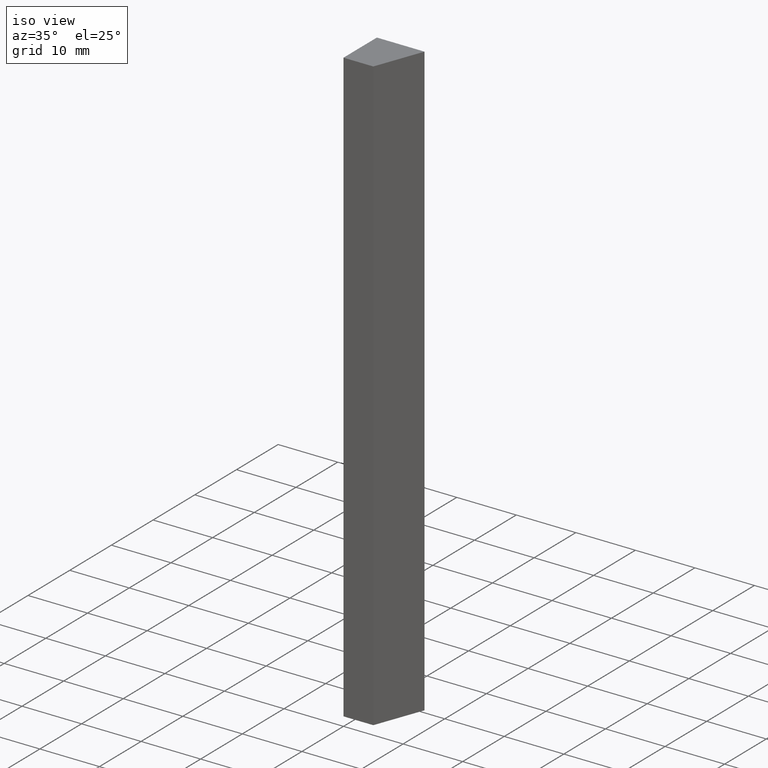
[diagram: clean part render]
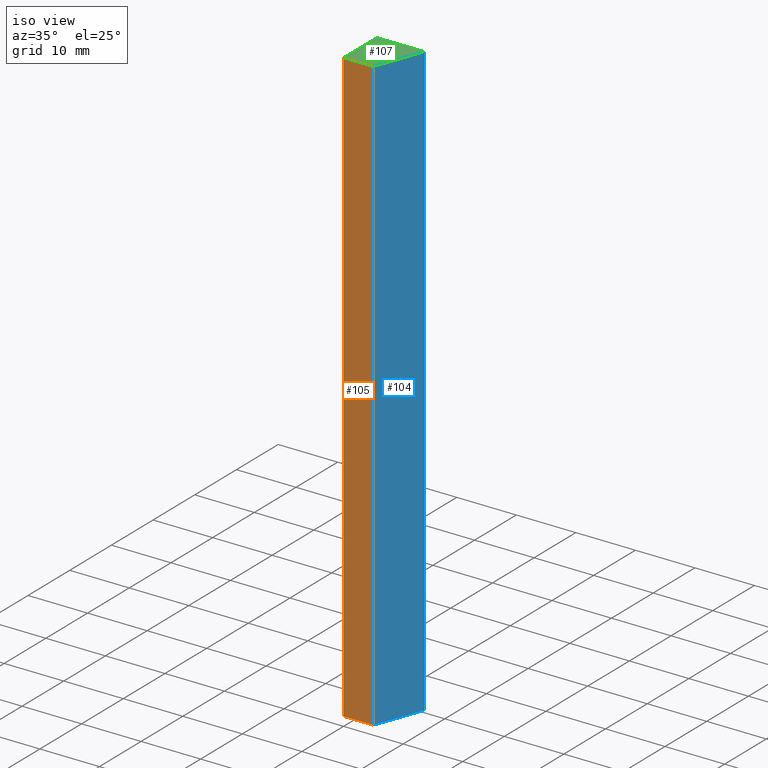
[diagram: same view with three faces highlighted in distinct colors, each labeled with its STEP entity id]
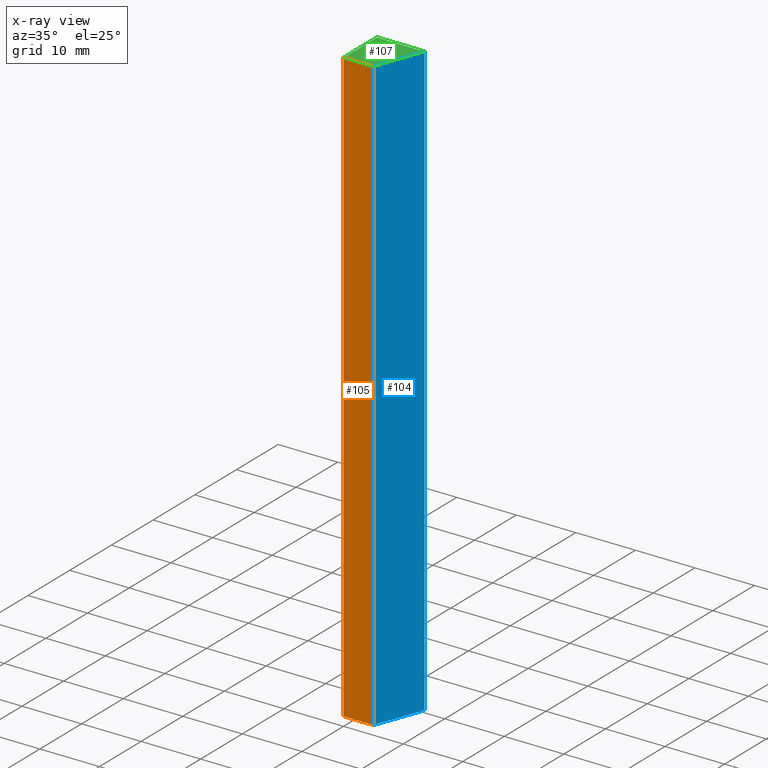
[diagram: x-ray of the same camera — body ghosted, the three highlighted faces saturated]
A machine part, iso view with three faces highlighted in distinct colors.
The next image is the same camera in x-ray (body ghosted, the three faces saturated) — at least one of them is partly hidden behind the body in this view.
Their STEP definitions:

[orange] entity #105 — the highlighted planar face has unit normal (0, -1, 0).
#19=FACE_OUTER_BOUND('',#25,.T.);
#25=EDGE_LOOP('',(#84,#85,#86,#87));
#28=LINE('',#167,#40);
#36=LINE('',#182,#48);
#37=LINE('',#185,#49);
#38=LINE('',#186,#50);
#40=VECTOR('',#141,10.);
#48=VECTOR('',#153,10.);
#49=VECTOR('',#156,10.);
#50=VECTOR('',#157,10.);
#52=VERTEX_POINT('',#165);
#53=VERTEX_POINT('',#166);
#58=VERTEX_POINT('',#180);
#59=VERTEX_POINT('',#184);
#60=EDGE_CURVE('',#52,#53,#28,.T.);
#68=EDGE_CURVE('',#58,#53,#36,.T.);
#69=EDGE_CURVE('',#58,#59,#37,.T.);
#70=EDGE_CURVE('',#52,#59,#38,.T.);
#84=ORIENTED_EDGE('',*,*,#69,.T.);
#85=ORIENTED_EDGE('',*,*,#70,.F.);
#86=ORIENTED_EDGE('',*,*,#60,.T.);
#87=ORIENTED_EDGE('',*,*,#68,.F.);
#99=PLANE('',#134);
#105=ADVANCED_FACE('',(#19),#99,.T.);
#134=AXIS2_PLACEMENT_3D('',#183,#154,#155);
#141=DIRECTION('',(1.,3.67394039744206E-16,0.));
#153=DIRECTION('',(0.,0.,-1.));
#154=DIRECTION('center_axis',(3.67394039744206E-16,-1.,0.));
#155=DIRECTION('ref_axis',(0.,0.,-1.));
#156=DIRECTION('',(-1.,-3.67394039744206E-16,0.));
#157=DIRECTION('',(0.,0.,1.));
#165=CARTESIAN_POINT('',(0.,9.55224489100982E-15,-50.));
#166=CARTESIAN_POINT('',(5.,1.13892150897308E-14,-50.));
#167=CARTESIAN_POINT('',(5.,1.13892150897308E-14,-50.));
#180=CARTESIAN_POINT('',(5.,1.13892150897308E-14,50.));
#182=CARTESIAN_POINT('',(5.,1.13892150897308E-14,0.));
#183=CARTESIAN_POINT('Origin',(5.,1.13892150897308E-14,0.));
#184=CARTESIAN_POINT('',(0.,9.55224489100982E-15,50.));
#185=CARTESIAN_POINT('',(5.,1.13892150897308E-14,50.));
#186=CARTESIAN_POINT('',(0.,9.55224489100982E-15,0.));

[blue] entity #104 — the highlighted planar face has unit normal (0.9363, -0.3511, 0).
#18=FACE_OUTER_BOUND('',#24,.T.);
#24=EDGE_LOOP('',(#80,#81,#82,#83));
#31=LINE('',#172,#43);
#33=LINE('',#177,#45);
#35=LINE('',#181,#47);
#36=LINE('',#182,#48);
#43=VECTOR('',#144,10.);
#45=VECTOR('',#148,10.);
#47=VECTOR('',#152,10.);
#48=VECTOR('',#153,10.);
#53=VERTEX_POINT('',#166);
#55=VERTEX_POINT('',#170);
#57=VERTEX_POINT('',#175);
#58=VERTEX_POINT('',#180);
#63=EDGE_CURVE('',#53,#55,#31,.T.);
#65=EDGE_CURVE('',#57,#55,#33,.T.);
#67=EDGE_CURVE('',#57,#58,#35,.T.);
#68=EDGE_CURVE('',#58,#53,#36,.T.);
#80=ORIENTED_EDGE('',*,*,#67,.T.);
#81=ORIENTED_EDGE('',*,*,#68,.T.);
#82=ORIENTED_EDGE('',*,*,#63,.T.);
#83=ORIENTED_EDGE('',*,*,#65,.F.);
#98=PLANE('',#133);
#104=ADVANCED_FACE('',(#18),#98,.T.);
#133=AXIS2_PLACEMENT_3D('',#179,#150,#151);
#144=DIRECTION('',(0.351123441588391,0.936329177569045,0.));
#148=DIRECTION('',(0.,0.,-1.));
#150=DIRECTION('center_axis',(0.936329177569045,-0.351123441588391,0.));
#151=DIRECTION('ref_axis',(0.,0.,-1.));
#152=DIRECTION('',(-0.351123441588391,-0.936329177569045,0.));
#153=DIRECTION('',(0.,0.,-1.));
#166=CARTESIAN_POINT('',(5.,1.13892150897308E-14,-50.));
#170=CARTESIAN_POINT('',(8.,8.00000000000001,-50.));
#172=CARTESIAN_POINT('',(8.,8.00000000000001,-50.));
#175=CARTESIAN_POINT('',(8.,8.00000000000001,50.));
#177=CARTESIAN_POINT('',(8.,8.00000000000001,0.));
#179=CARTESIAN_POINT('Origin',(8.,8.00000000000001,0.));
#180=CARTESIAN_POINT('',(5.,1.13892150897308E-14,50.));
#181=CARTESIAN_POINT('',(8.,8.00000000000001,50.));
#182=CARTESIAN_POINT('',(5.,1.13892150897308E-14,0.));

[green] entity #107 — the highlighted planar face has unit normal (0, 0, 1).
#21=FACE_OUTER_BOUND('',#27,.T.);
#27=EDGE_LOOP('',(#92,#93,#94,#95));
#32=LINE('',#176,#44);
#35=LINE('',#181,#47);
#37=LINE('',#185,#49);
#39=LINE('',#188,#51);
#44=VECTOR('',#147,10.);
#47=VECTOR('',#152,10.);
#49=VECTOR('',#156,10.);
#51=VECTOR('',#160,10.);
#56=VERTEX_POINT('',#174);
#57=VERTEX_POINT('',#175);
#58=VERTEX_POINT('',#180);
#59=VERTEX_POINT('',#184);
#64=EDGE_CURVE('',#56,#57,#32,.T.);
#67=EDGE_CURVE('',#57,#58,#35,.T.);
#69=EDGE_CURVE('',#58,#59,#37,.T.);
#71=EDGE_CURVE('',#59,#56,#39,.T.);
#92=ORIENTED_EDGE('',*,*,#64,.F.);
#93=ORIENTED_EDGE('',*,*,#71,.F.);
#94=ORIENTED_EDGE('',*,*,#69,.F.);
#95=ORIENTED_EDGE('',*,*,#67,.F.);
#101=PLANE('',#136);
#107=ADVANCED_FACE('',(#21),#101,.T.);
#136=AXIS2_PLACEMENT_3D('',#189,#161,#162);
#147=DIRECTION('',(1.,2.77555756156289E-16,0.));
#152=DIRECTION('',(-0.351123441588391,-0.936329177569045,0.));
#156=DIRECTION('',(-1.,-3.67394039744206E-16,0.));
#160=DIRECTION('',(0.,1.,0.));
#161=DIRECTION('center_axis',(0.,0.,1.));
#162=DIRECTION('ref_axis',(1.,0.,0.));
#174=CARTESIAN_POINT('',(0.,8.00000000000001,50.));
#175=CARTESIAN_POINT('',(8.,8.00000000000001,50.));
#176=CARTESIAN_POINT('',(0.,8.00000000000001,50.));
#180=CARTESIAN_POINT('',(5.,1.13892150897308E-14,50.));
#181=CARTESIAN_POINT('',(8.,8.00000000000001,50.));
#184=CARTESIAN_POINT('',(0.,9.55224489100982E-15,50.));
#185=CARTESIAN_POINT('',(5.,1.13892150897308E-14,50.));
#188=CARTESIAN_POINT('',(0.,9.55224489100982E-15,50.));
#189=CARTESIAN_POINT('Origin',(3.38600093632938,4.40617379091357,50.));